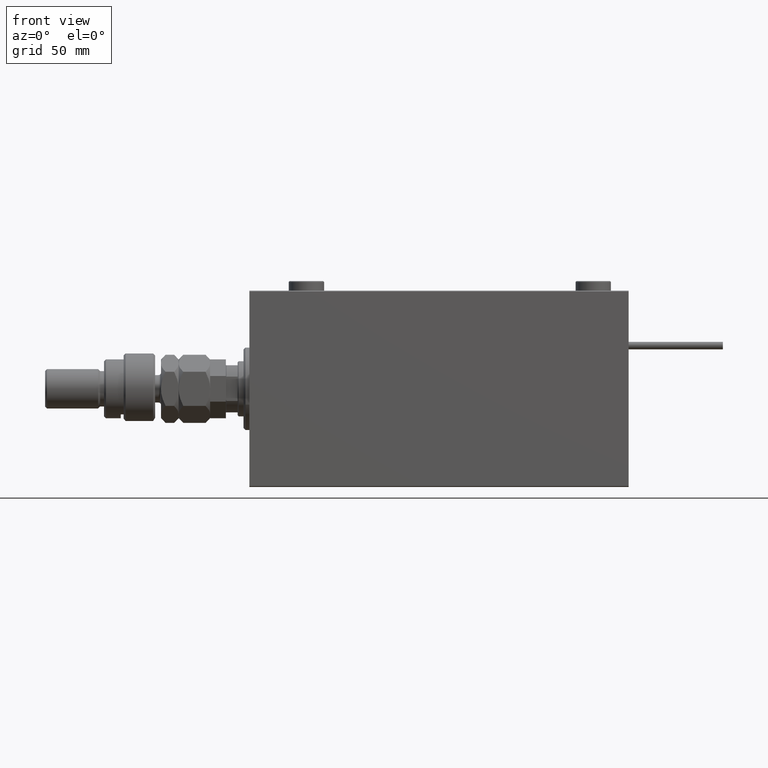
[diagram: clean part render]
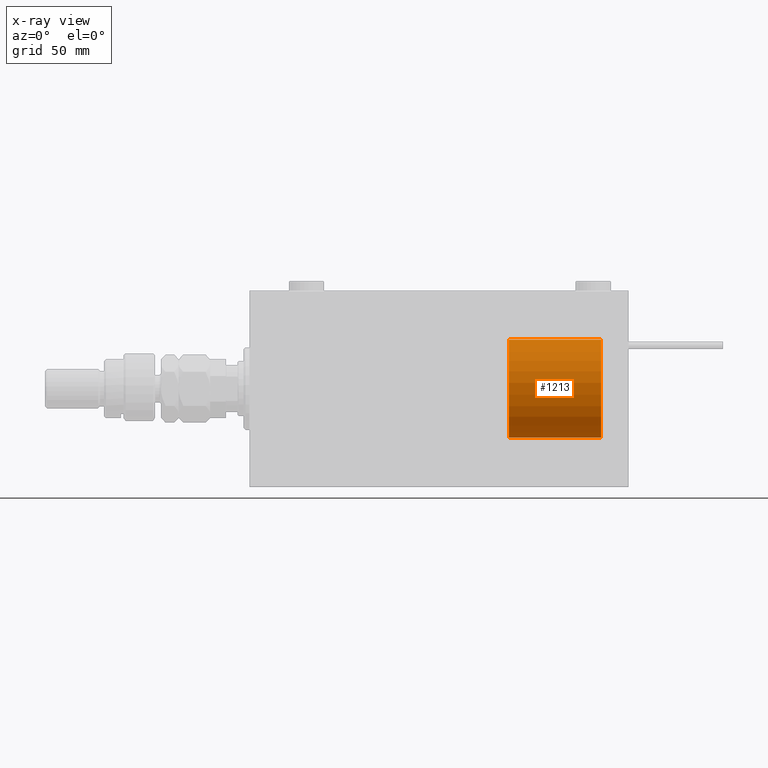
[diagram: x-ray — body ghosted, one internal face saturated and labeled with its STEP entity id]
A machine part, front view, then the same camera in x-ray: the body is ghosted and one INTERNAL B-rep face — a face not visible from any outside direction — is saturated and labeled: STEP entity #1213.
In plain terms, the highlighted cylindrical surface (partial cylindrical patch) has radius 25 mm, axis along (1, -0, -0).
Its self-contained STEP definition (entity closure, byte-faithful):
#670 = CIRCLE ( 'NONE', #10391, 25.00000000000000000 ) ;
#1213 = ADVANCED_FACE ( 'NONE', ( #52060 ), #31950, .T. ) ;
#2652 = DIRECTION ( 'NONE',  ( 0.000000000000000000, 0.000000000000000000, 1.000000000000000000 ) ) ;
#3159 = DIRECTION ( 'NONE',  ( -0.000000000000000000, -0.000000000000000000, -1.000000000000000000 ) ) ;
#5123 = CARTESIAN_POINT ( 'NONE',  ( 0.000000000000000000, 0.000000000000000000, 0.000000000000000000 ) ) ;
#5772 = DIRECTION ( 'NONE',  ( -0.000000000000000000, -0.000000000000000000, -1.000000000000000000 ) ) ;
#6484 = VERTEX_POINT ( 'NONE', #34340 ) ;
#7818 = EDGE_CURVE ( 'NONE', #17431, #6484, #11904, .T. ) ;
#8341 = AXIS2_PLACEMENT_3D ( 'NONE', #31673, #5772, #39677 ) ;
#9044 = VERTEX_POINT ( 'NONE', #20573 ) ;
#10391 = AXIS2_PLACEMENT_3D ( 'NONE', #39609, #2652, #19452 ) ;
#11904 = LINE ( 'NONE', #44441, #48797 ) ;
#17431 = VERTEX_POINT ( 'NONE', #25098 ) ;
#19357 = DIRECTION ( 'NONE',  ( -0.000000000000000000, -0.000000000000000000, -1.000000000000000000 ) ) ;
#19452 = DIRECTION ( 'NONE',  ( 1.000000000000000000, 0.000000000000000000, 0.000000000000000000 ) ) ;
#20451 = VECTOR ( 'NONE', #3159, 1000.000000000000000 ) ;
#20571 = EDGE_CURVE ( 'NONE', #9044, #17431, #670, .T. ) ;
#20573 = CARTESIAN_POINT ( 'NONE',  ( -25.00000000000000000, 0.000000000000000000, 47.00000000000000000 ) ) ;
#25098 = CARTESIAN_POINT ( 'NONE',  ( 25.00000000000000000, 3.061616997868383043E-15, 47.00000000000000000 ) ) ;
#29244 = CIRCLE ( 'NONE', #42421, 25.00000000000000000 ) ;
#29631 = EDGE_CURVE ( 'NONE', #39485, #6484, #29244, .T. ) ;
#30213 = DIRECTION ( 'NONE',  ( 0.000000000000000000, 0.000000000000000000, 1.000000000000000000 ) ) ;
#31673 = CARTESIAN_POINT ( 'NONE',  ( 0.000000000000000000, 0.000000000000000000, 47.00000000000000000 ) ) ;
#31950 = CYLINDRICAL_SURFACE ( 'NONE', #8341, 25.00000000000000000 ) ;
#32176 = CARTESIAN_POINT ( 'NONE',  ( -25.00000000000000000, 0.000000000000000000, 0.000000000000000000 ) ) ;
#32815 = ORIENTED_EDGE ( 'NONE', *, *, #46596, .T. ) ;
#34340 = CARTESIAN_POINT ( 'NONE',  ( 25.00000000000000000, 3.061616997868383043E-15, 0.000000000000000000 ) ) ;
#39485 = VERTEX_POINT ( 'NONE', #32176 ) ;
#39609 = CARTESIAN_POINT ( 'NONE',  ( 0.000000000000000000, 0.000000000000000000, 47.00000000000000000 ) ) ;
#39677 = DIRECTION ( 'NONE',  ( -1.000000000000000000, 0.000000000000000000, 0.000000000000000000 ) ) ;
#41453 = ORIENTED_EDGE ( 'NONE', *, *, #7818, .F. ) ;
#42003 = CARTESIAN_POINT ( 'NONE',  ( -25.00000000000000000, 0.000000000000000000, 47.00000000000000000 ) ) ;
#42421 = AXIS2_PLACEMENT_3D ( 'NONE', #5123, #30213, #45915 ) ;
#44441 = CARTESIAN_POINT ( 'NONE',  ( 25.00000000000000000, 3.061616997868383043E-15, 47.00000000000000000 ) ) ;
#45302 = LINE ( 'NONE', #42003, #20451 ) ;
#45915 = DIRECTION ( 'NONE',  ( 1.000000000000000000, 0.000000000000000000, 0.000000000000000000 ) ) ;
#46596 = EDGE_CURVE ( 'NONE', #9044, #39485, #45302, .T. ) ;
#47115 = EDGE_LOOP ( 'NONE', ( #41453, #49664, #32815, #47501 ) ) ;
#47501 = ORIENTED_EDGE ( 'NONE', *, *, #29631, .T. ) ;
#48797 = VECTOR ( 'NONE', #19357, 1000.000000000000000 ) ;
#49664 = ORIENTED_EDGE ( 'NONE', *, *, #20571, .F. ) ;
#52060 = FACE_OUTER_BOUND ( 'NONE', #47115, .T. ) ;